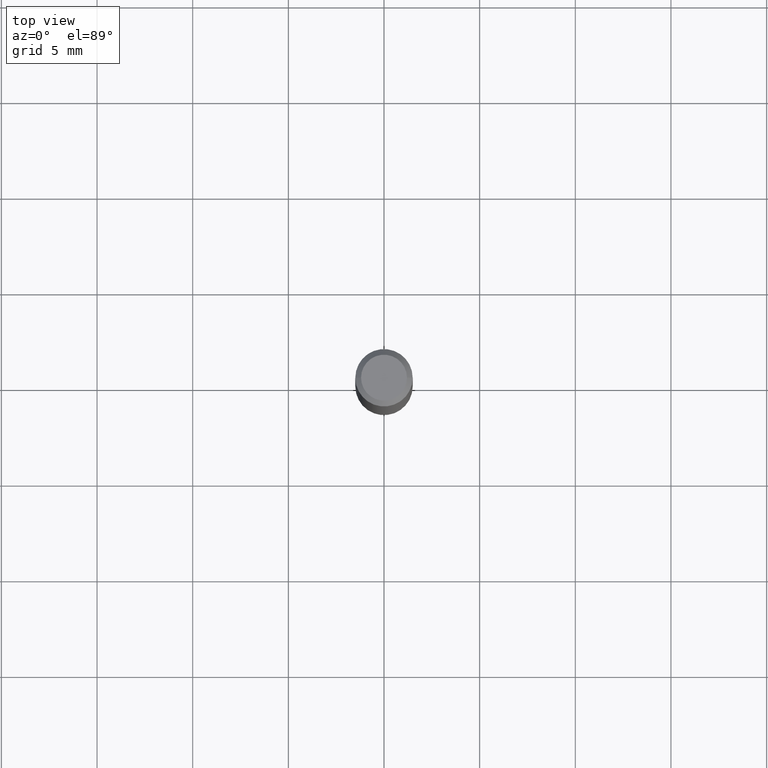
[diagram: clean part render]
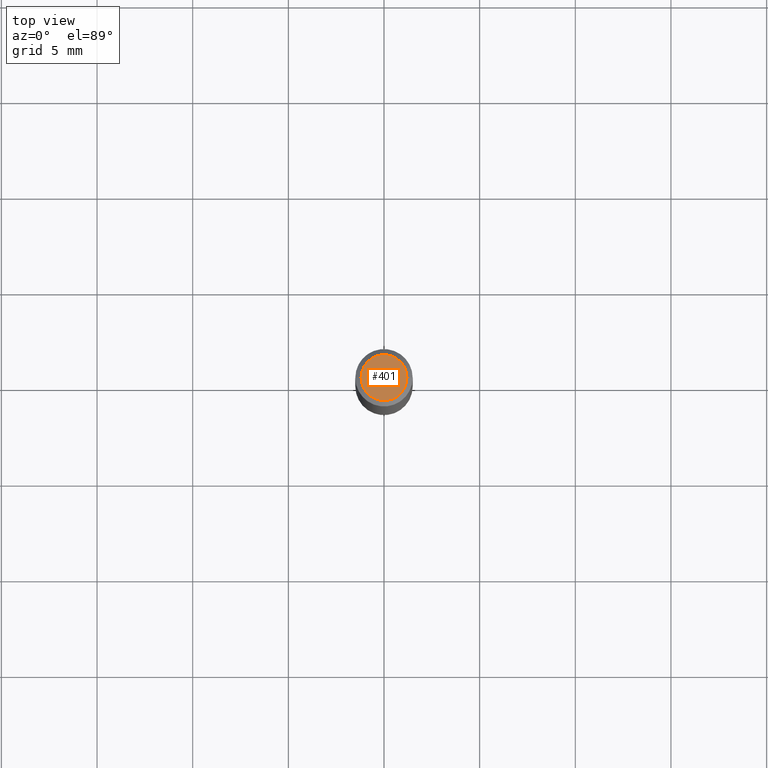
[diagram: same view with one face highlighted and labeled with its STEP entity id]
A machine part, top view. The second image highlights one B-rep face of the part: STEP entity #401.
In plain terms, the highlighted planar face has unit normal (0, -0, -1).
Its self-contained STEP definition (entity closure, byte-faithful):
#21 = CARTESIAN_POINT ( 'NONE',  ( 8.265746106709734507E-48, -1.180129479067563789E-33, -3.380025165646692144E-19 ) ) ;
#90 = CARTESIAN_POINT ( 'NONE',  ( 0.04724000000000000421, -3.852183633974369345E-16, -3.380025165621689721E-19 ) ) ;
#95 = AXIS2_PLACEMENT_3D ( 'NONE', #21, #298, #437 ) ;
#119 = PLANE ( 'NONE',  #160 ) ;
#142 = EDGE_CURVE ( 'NONE', #212, #226, #199, .T. ) ;
#160 = AXIS2_PLACEMENT_3D ( 'NONE', #480, #304, #479 ) ;
#183 = ORIENTED_EDGE ( 'NONE', *, *, #346, .T. ) ;
#199 = CIRCLE ( 'NONE', #482, 0.04724000000000000421 ) ;
#212 = VERTEX_POINT ( 'NONE', #467 ) ;
#226 = VERTEX_POINT ( 'NONE', #90 ) ;
#298 = DIRECTION ( 'NONE',  ( -2.445468806185136597E-29, 3.491481338843145583E-15, 1.000000000000000000 ) ) ;
#304 = DIRECTION ( 'NONE',  ( 2.438088387897960049E-29, -3.491481338843145188E-15, -1.000000000000000000 ) ) ;
#323 = DIRECTION ( 'NONE',  ( 1.000000000000000000, -6.982962677686266711E-15, 4.876185090822587894E-29 ) ) ;
#328 = DIRECTION ( 'NONE',  ( -2.445468806185136597E-29, 3.491481338843145583E-15, 1.000000000000000000 ) ) ;
#337 = FACE_OUTER_BOUND ( 'NONE', #465, .T. ) ;
#346 = EDGE_CURVE ( 'NONE', #226, #212, #392, .T. ) ;
#378 = ORIENTED_EDGE ( 'NONE', *, *, #142, .T. ) ;
#392 = CIRCLE ( 'NONE', #95, 0.04724000000000000421 ) ;
#401 = ADVANCED_FACE ( 'NONE', ( #337 ), #119, .F. ) ;
#430 = CARTESIAN_POINT ( 'NONE',  ( 8.265746106709734507E-48, -1.180129479067563789E-33, -3.380025165646692144E-19 ) ) ;
#437 = DIRECTION ( 'NONE',  ( 1.000000000000000000, -6.982962677686266711E-15, 4.876185090822587894E-29 ) ) ;
#465 = EDGE_LOOP ( 'NONE', ( #378, #183 ) ) ;
#467 = CARTESIAN_POINT ( 'NONE',  ( -0.04724000000000000421, 3.504923541997677355E-16, -3.380025165670481712E-19 ) ) ;
#479 = DIRECTION ( 'NONE',  ( -1.000000000000000000, 6.982962677686265922E-15, -4.876176775795935793E-29 ) ) ;
#480 = CARTESIAN_POINT ( 'NONE',  ( 4.132873053354867254E-48, -5.900647395337818946E-34, -1.690012582823346072E-19 ) ) ;
#482 = AXIS2_PLACEMENT_3D ( 'NONE', #430, #328, #323 ) ;